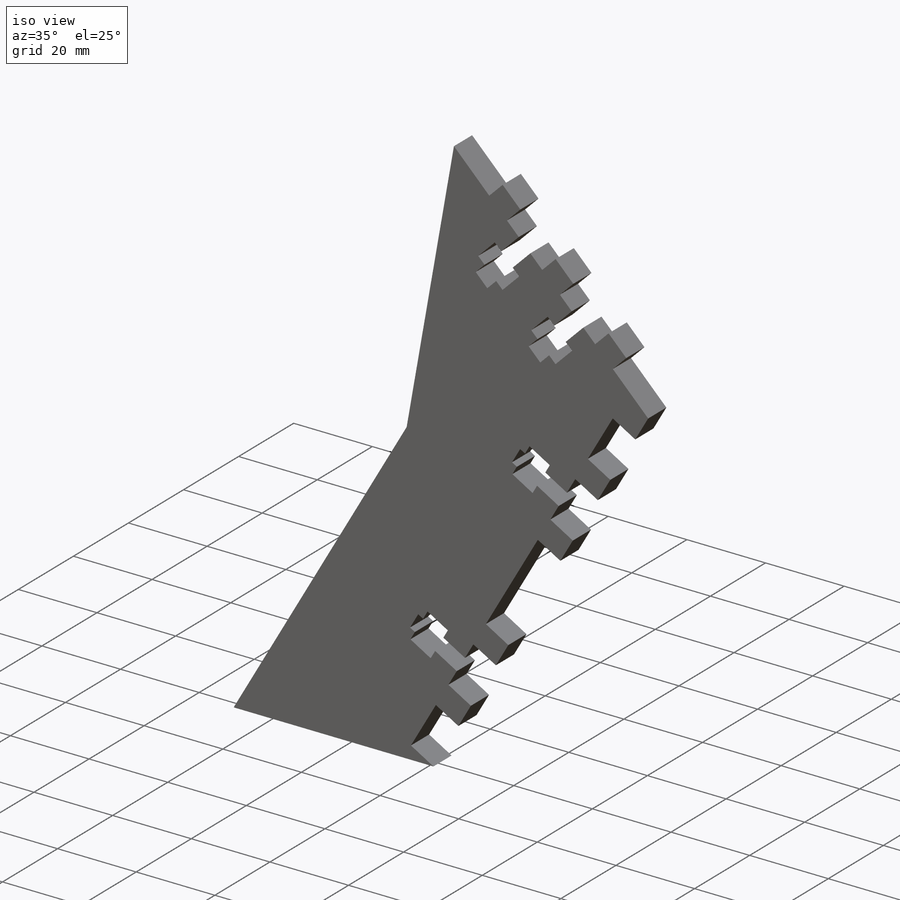
[diagram: iso view]
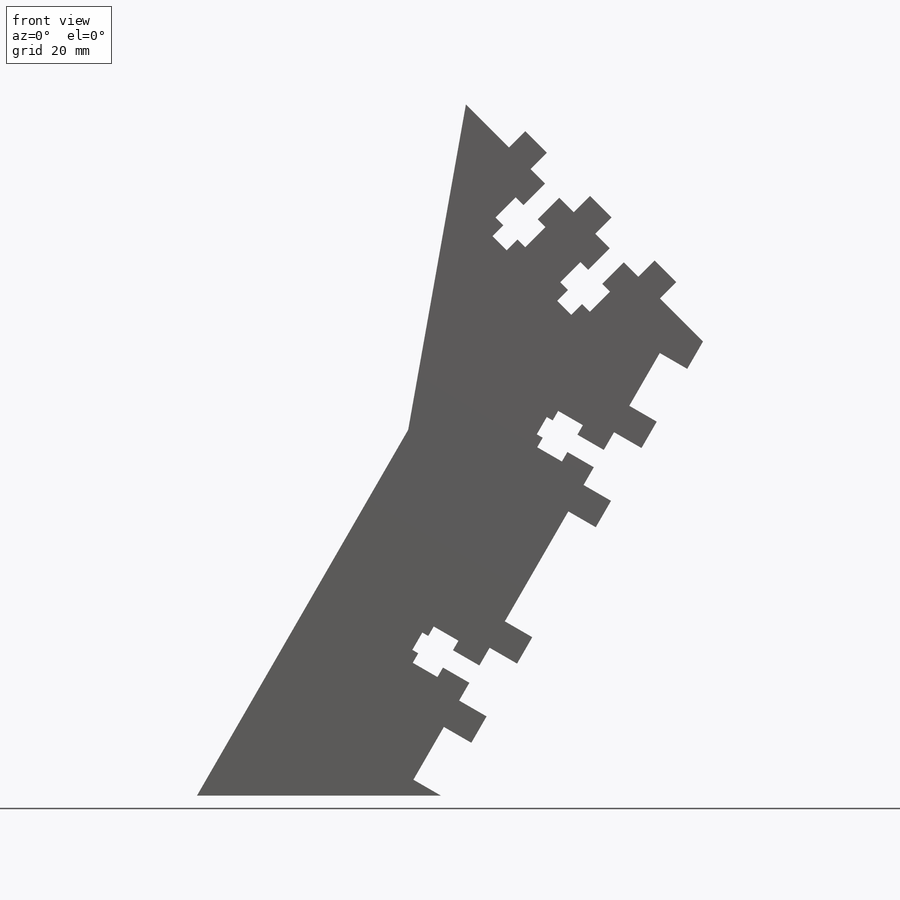
[diagram: front view]
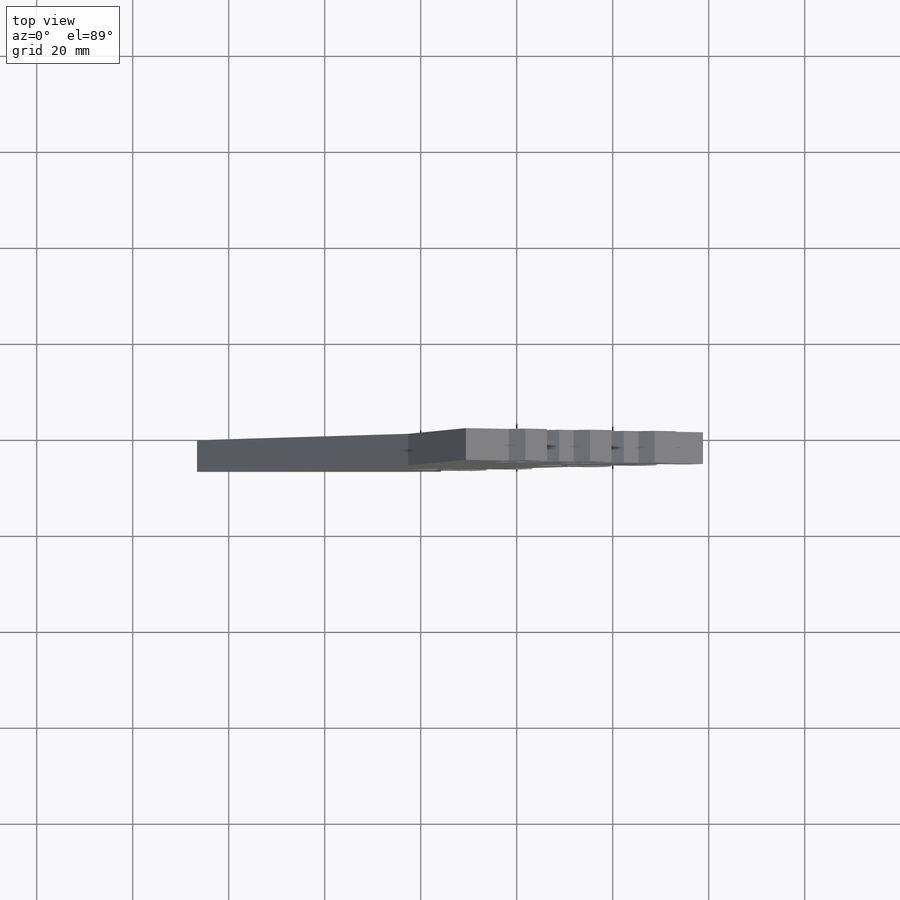
[diagram: top view]
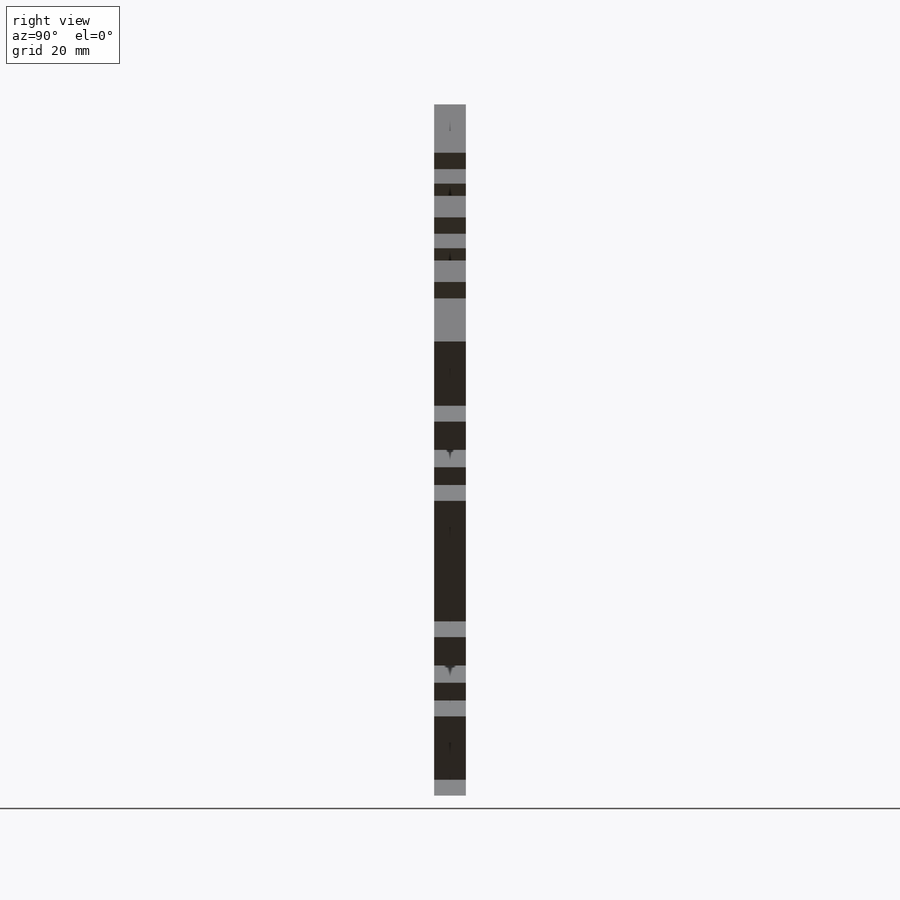
[diagram: right view]
SOLIDWORKS PART (.sldprt)
format: sldprt  version: not decoded by parser v0  size: 754,688 bytes
history: native  units: mm
features: sketch x6, extrude x3, cut_extrude x3, material x1 (+12 scaffold rows collapsed)
feature tree (25):
  scaffold x12  (default folders/planes/origin — collapsed)
  material  "Acrylic (Blue)"
  sketch  "Sketch1"  dims[c1.D1=304.8mm c1.D2=~76.84197mm c2.D2=120.0deg c2.D3=88.9mm c2.D1=304.8mm c2.D4=5.08mm c2.D5=12.7mm]
  extrude  "Boss-Extrude1"  Depth=6.604mm
  sketch  "Sketch2"  dims[c1.D1=6.35mm c1.D2=4.1656mm c1.D3=25.4mm c1.D4=4.826mm c1.D5=8.7376mm c1.D6=5.9436mm c1.D7=6.35mm c1.D8=20.32mm c1.D9=2.0 c2.D1=127.0mm c2.D2=127.0mm c3.D1=101.6mm c3.D2=~55.986785mm c4.D2=60.0deg c4.D3=38.1mm c4.D4=152.4mm c5.D2=38.1mm c5.D1=311.15mm c6.D2=50.8mm c6.D1=260.35mm c6.D3=12.7mm c6.D4=5.08mm c6.D5=254.0mm c6.D6=76.2mm c6.D7=~60.826413mm c7.D7=45.0deg c7.D8=76.2mm c7.D3=284.0482mm c7.D9=~39.593883mm c8.D9=45.0deg c8.D10=292.1mm c8.D1=50.8mm c8.D2=12.7mm c8.D3=76.2mm c8.D4=12.7mm]
  cut_extrude  "Cut-Extrude1"  [1 undecoded]
  sketch  "Sketch3"  dims[D1=6.604mm D2=~102.652878mm]
  cut_extrude  "Cut-Extrude2"  [1 undecoded]
  sketch  "Sketch4"  dims[c1.NUT_HOLE-21=65536.0 c1.D1=6.35mm c1.D2=4.1656mm c1.D3=25.4mm c1.D4=6.604mm c1.D5=8.7376mm c1.D6=5.9436mm c1.D7=6.35mm c1.D8=20.32mm c1.NUT_HOLE-22=65536.0 c1.NUT_HOLE_2X-3=65536.0 c2.D1=12.7mm c2.D2=12.7mm c2.D3=12.7mm]
  sketch  "Sketch5"
  cut_extrude  "Cut-Extrude3"  [1 undecoded]
  sketch  "Sketch6"
  extrude  "Boss-Extrude2"  [1 undecoded]
  extrude  "Move Face3"  Depth=0.0508mm
decode coverage: 6 of 12 modeling features carry decoded parameters
note: ~ marks probable driven/reference dimensions
note: 4 parameter values undecoded
summary: no parameter record found for 4 features
note: suppression state not decoded; provenance and decode notes live in map.json
